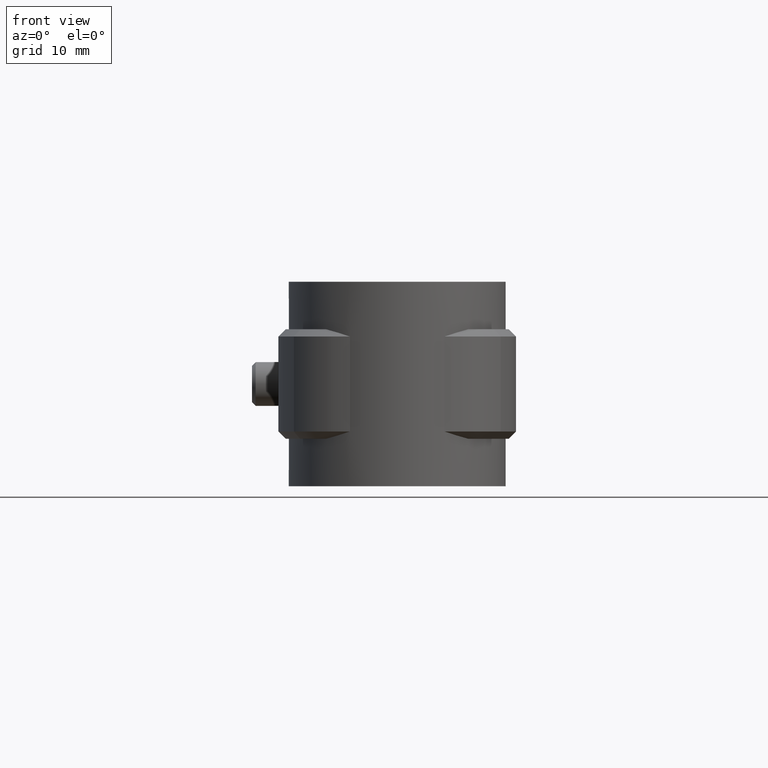
[diagram: clean part render]
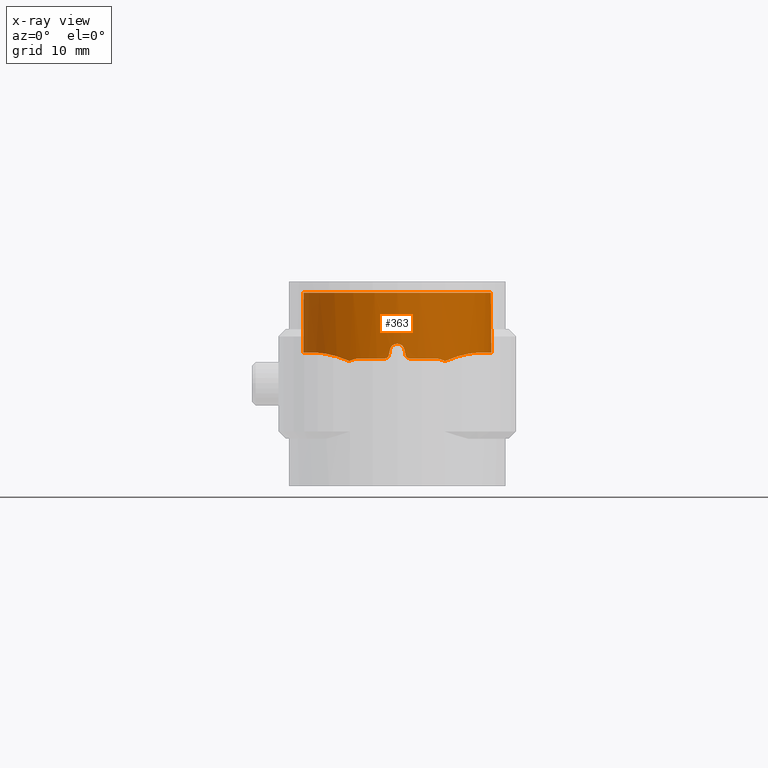
[diagram: x-ray — body ghosted, one internal face saturated and labeled with its STEP entity id]
A machine part, front view, then the same camera in x-ray: the body is ghosted and one INTERNAL B-rep face — a face not visible from any outside direction — is saturated and labeled: STEP entity #363.
In plain terms, the highlighted cylindrical surface (partial cylindrical patch) has radius 12.91 mm, axis along (0, 0, 1).
Its self-contained STEP definition (entity closure, byte-faithful):
#363 = ADVANCED_FACE( '', ( #690 ), #691, .T. );
#690 = FACE_OUTER_BOUND( '', #1390, .T. );
#691 = CYLINDRICAL_SURFACE( '', #1391, 12.9100000000000 );
#1390 = EDGE_LOOP( '', ( #2606, #2607, #2608, #2609, #2610, #2611, #2612, #2613, #2614, #2615, #2616, #2617, #2618, #2619, #2620, #2621 ) );
#1391 = AXIS2_PLACEMENT_3D( '', #2622, #2623, #2624 );
#2606 = ORIENTED_EDGE( '', *, *, #6294, .F. );
#2607 = ORIENTED_EDGE( '', *, *, #6295, .F. );
#2608 = ORIENTED_EDGE( '', *, *, #6296, .F. );
#2609 = ORIENTED_EDGE( '', *, *, #6297, .F. );
#2610 = ORIENTED_EDGE( '', *, *, #6298, .F. );
#2611 = ORIENTED_EDGE( '', *, *, #6299, .T. );
#2612 = ORIENTED_EDGE( '', *, *, #6300, .F. );
#2613 = ORIENTED_EDGE( '', *, *, #6301, .F. );
#2614 = ORIENTED_EDGE( '', *, *, #6302, .F. );
#2615 = ORIENTED_EDGE( '', *, *, #6303, .F. );
#2616 = ORIENTED_EDGE( '', *, *, #6304, .F. );
#2617 = ORIENTED_EDGE( '', *, *, #6305, .F. );
#2618 = ORIENTED_EDGE( '', *, *, #6306, .F. );
#2619 = ORIENTED_EDGE( '', *, *, #6307, .F. );
#2620 = ORIENTED_EDGE( '', *, *, #6308, .F. );
#2621 = ORIENTED_EDGE( '', *, *, #6309, .F. );
#2622 = CARTESIAN_POINT( '', ( 0.000000000000000, 0.000000000000000, 0.000000000000000 ) );
#2623 = DIRECTION( '', ( 0.000000000000000, 0.000000000000000, 1.00000000000000 ) );
#2624 = DIRECTION( '', ( 1.00000000000000, -6.12303176911189E-017, 0.000000000000000 ) );
#6294 = EDGE_CURVE( '', #7204, #7205, #7206, .T. );
#6295 = EDGE_CURVE( '', #7207, #7204, #7208, .T. );
#6296 = EDGE_CURVE( '', #7209, #7207, #7210, .T. );
#6297 = EDGE_CURVE( '', #7211, #7209, #7212, .T. );
#6298 = EDGE_CURVE( '', #7213, #7211, #7214, .F. );
#6299 = EDGE_CURVE( '', #7213, #7215, #7216, .T. );
#6300 = EDGE_CURVE( '', #7217, #7215, #7218, .T. );
#6301 = EDGE_CURVE( '', #7219, #7217, #7220, .T. );
#6302 = EDGE_CURVE( '', #7221, #7219, #7222, .T. );
#6303 = EDGE_CURVE( '', #7223, #7221, #7224, .T. );
#6304 = EDGE_CURVE( '', #7225, #7223, #7226, .T. );
#6305 = EDGE_CURVE( '', #7227, #7225, #7228, .T. );
#6306 = EDGE_CURVE( '', #7229, #7227, #7230, .T. );
#6307 = EDGE_CURVE( '', #7231, #7229, #7232, .T. );
#6308 = EDGE_CURVE( '', #7233, #7231, #7234, .T. );
#6309 = EDGE_CURVE( '', #7205, #7233, #7235, .T. );
#7204 = VERTEX_POINT( '', #8720 );
#7205 = VERTEX_POINT( '', #8721 );
#7206 = B_SPLINE_CURVE_WITH_KNOTS( '', 3, ( #8722, #8723, #8724, #8725, #8726, #8727 ), .UNSPECIFIED., .F., .F., ( 4, 2, 4 ), ( 0.0100745744029079, 0.0109624641031997, 0.0118503538034916 ), .UNSPECIFIED. );
#7207 = VERTEX_POINT( '', #8728 );
#7208 = B_SPLINE_CURVE_WITH_KNOTS( '', 3, ( #8729, #8730, #8731, #8732, #8733, #8734, #8735, #8736, #8737, #8738 ), .UNSPECIFIED., .F., .F., ( 4, 2, 2, 2, 4 ), ( 5.64749895672200E-005, 0.00336964445844548, 0.00419793682566505, 0.00502622919288461, 0.00668281392732375 ), .UNSPECIFIED. );
#7209 = VERTEX_POINT( '', #8739 );
#7210 = B_SPLINE_CURVE_WITH_KNOTS( '', 3, ( #8740, #8741, #8742, #8743, #8744, #8745, #8746, #8747, #8748, #8749, #8750, #8751, #8752, #8753, #8754, #8755, #8756, #8757, #8758, #8759, #8760, #8761, #8762, #8763 ), .UNSPECIFIED., .F., .F., ( 4, 2, 2, 2, 2, 2, 2, 2, 2, 2, 2, 4 ), ( 0.000000000000000, 0.00262616169573971, 0.00393924254360956, 0.00525232339147942, 0.00787848508721913, 0.00919156593508899, 0.0105046467829589, 0.0118177276308287, 0.0131308084786986, 0.0157569701744383, 0.0183831318701780, 0.0210092935659177 ), .UNSPECIFIED. );
#7211 = VERTEX_POINT( '', #8764 );
#7212 = LINE( '', #8765, #8766 );
#7213 = VERTEX_POINT( '', #8767 );
#7214 = CIRCLE( '', #8768, 12.9100000000000 );
#7215 = VERTEX_POINT( '', #8769 );
#7216 = LINE( '', #8770, #8771 );
#7217 = VERTEX_POINT( '', #8772 );
#7218 = B_SPLINE_CURVE_WITH_KNOTS( '', 3, ( #8773, #8774, #8775, #8776, #8777, #8778, #8779, #8780, #8781, #8782, #8783, #8784, #8785, #8786, #8787, #8788, #8789, #8790, #8791, #8792, #8793, #8794, #8795, #8796 ), .UNSPECIFIED., .F., .F., ( 4, 2, 2, 2, 2, 2, 2, 2, 2, 2, 2, 4 ), ( 0.000129656456609892, 0.00275580936476012, 0.00538196227291035, 0.00800811518106058, 0.00932119163513570, 0.0106342680892108, 0.0119473445432859, 0.0132604209973610, 0.0158865739055113, 0.0171996503595864, 0.0185127268136615, 0.0211388797218117 ), .UNSPECIFIED. );
#7219 = VERTEX_POINT( '', #8797 );
#7220 = B_SPLINE_CURVE_WITH_KNOTS( '', 3, ( #8798, #8799, #8800, #8801, #8802, #8803, #8804, #8805, #8806, #8807 ), .UNSPECIFIED., .F., .F., ( 4, 2, 2, 2, 4 ), ( 0.0160978879789235, 0.0177464275277820, 0.0193949670766405, 0.0210435066254990, 0.0226920461743575 ), .UNSPECIFIED. );
#7221 = VERTEX_POINT( '', #8808 );
#7222 = B_SPLINE_CURVE_WITH_KNOTS( '', 3, ( #8809, #8810, #8811, #8812, #8813, #8814 ), .UNSPECIFIED., .F., .F., ( 4, 2, 4 ), ( 3.87895961444886E-018, 0.000890649610167902, 0.00178129922033580 ), .UNSPECIFIED. );
#7223 = VERTEX_POINT( '', #8815 );
#7224 = CIRCLE( '', #8816, 12.9100000000000 );
#7225 = VERTEX_POINT( '', #8817 );
#7226 = B_SPLINE_CURVE_WITH_KNOTS( '', 3, ( #8818, #8819, #8820, #8821, #8822, #8823 ), .UNSPECIFIED., .F., .F., ( 4, 2, 4 ), ( 2.04566856771261E-018, 0.000337016490106994, 0.000674032980213987 ), .UNSPECIFIED. );
#7227 = VERTEX_POINT( '', #8824 );
#7228 = ELLIPSE( '', #8825, 58.8122822251916, 12.9100000000000 );
#7229 = VERTEX_POINT( '', #8826 );
#7230 = B_SPLINE_CURVE_WITH_KNOTS( '', 3, ( #8827, #8828, #8829, #8830, #8831, #8832, #8833, #8834, #8835, #8836 ), .UNSPECIFIED., .F., .F., ( 4, 2, 2, 2, 4 ), ( 9.26342742239755E-019, 0.000671833198564516, 0.00134366639712903, 0.00201549959569355, 0.00268733279425806 ), .UNSPECIFIED. );
#7231 = VERTEX_POINT( '', #8837 );
#7232 = ELLIPSE( '', #8838, 58.8122522236967, 12.9100000000000 );
#7233 = VERTEX_POINT( '', #8839 );
#7234 = B_SPLINE_CURVE_WITH_KNOTS( '', 3, ( #8840, #8841, #8842, #8843, #8844, #8845 ), .UNSPECIFIED., .F., .F., ( 4, 2, 4 ), ( 8.59738825340030E-018, 0.000336992785626757, 0.000673985571253506 ), .UNSPECIFIED. );
#7235 = CIRCLE( '', #8846, 12.9100000000000 );
#8720 = CARTESIAN_POINT( '', ( 6.55531539840426, -11.1218676501629, -9.36455840247556 ) );
#8721 = CARTESIAN_POINT( '', ( 5.00000000000000, -11.9024409261294, -9.00000000000000 ) );
#8722 = CARTESIAN_POINT( '', ( 6.55531539839940, -11.1218676501525, -9.36455840247315 ) );
#8723 = CARTESIAN_POINT( '', ( 6.32015172997991, -11.2604749475260, -9.24790699524380 ) );
#8724 = CARTESIAN_POINT( '', ( 6.07227759219039, -11.3965686208257, -9.15741431722998 ) );
#8725 = CARTESIAN_POINT( '', ( 5.54781086048457, -11.6608801615528, -9.03264343591434 ) );
#8726 = CARTESIAN_POINT( '', ( 5.27729536608152, -11.7859541618587, -8.99999999999998 ) );
#8727 = CARTESIAN_POINT( '', ( 5.00000000000000, -11.9024409261294, -8.99999999999997 ) );
#8728 = CARTESIAN_POINT( '', ( 11.1158138239829, -6.56557560542498, -8.20578959438989 ) );
#8729 = CARTESIAN_POINT( '', ( 11.1158138239829, -6.56557560542494, -8.20578959438988 ) );
#8730 = CARTESIAN_POINT( '', ( 10.5464443727055, -7.52954361033722, -8.22947050627589 ) );
#8731 = CARTESIAN_POINT( '', ( 9.86791215848431, -8.39632120479451, -8.32228283400495 ) );
#8732 = CARTESIAN_POINT( '', ( 8.89301540923206, -9.36257119812789, -8.55205024377319 ) );
#8733 = CARTESIAN_POINT( '', ( 8.69064900902044, -9.55066263861364, -8.60412425549421 ) );
#8734 = CARTESIAN_POINT( '', ( 8.27939493538370, -9.90929647041309, -8.71992973518773 ) );
#8735 = CARTESIAN_POINT( '', ( 8.07031816018667, -10.0801522768064, -8.78365793155719 ) );
#8736 = CARTESIAN_POINT( '', ( 7.43428651696818, -10.5681173585745, -8.99485449832332 ) );
#8737 = CARTESIAN_POINT( '', ( 6.99828295475331, -10.8607791230728, -9.16145208623091 ) );
#8738 = CARTESIAN_POINT( '', ( 6.55531539839195, -11.1218676501568, -9.36455840245641 ) );
#8739 = CARTESIAN_POINT( '', ( 5.86408106219426, 11.5013326747823, -8.20739690841978 ) );
#8740 = CARTESIAN_POINT( '', ( 5.86408106219414, 11.5013326747819, -8.20739690841976 ) );
#8741 = CARTESIAN_POINT( '', ( 6.65374116884316, 11.0987157774267, -8.20850447027294 ) );
#8742 = CARTESIAN_POINT( '', ( 7.38958332781680, 10.6221521878716, -8.20858405756369 ) );
#8743 = CARTESIAN_POINT( '', ( 8.41533312395806, 9.80011520993900, -8.20708110828982 ) );
#8744 = CARTESIAN_POINT( '', ( 8.74414498631812, 9.50809673492435, -8.20639190411669 ) );
#8745 = CARTESIAN_POINT( '', ( 9.37475983291398, 8.88694847164167, -8.20561692229041 ) );
#8746 = CARTESIAN_POINT( '', ( 9.67287342745124, 8.56128400351433, -8.20572960681877 ) );
#8747 = CARTESIAN_POINT( '', ( 10.5101398341898, 7.54804061959582, -8.20652661653835 ) );
#8748 = CARTESIAN_POINT( '', ( 10.9960156998445, 6.82143340626685, -8.20714016871088 ) );
#8749 = CARTESIAN_POINT( '', ( 11.6146013299799, 5.65359971102201, -8.20657302665307 ) );
#8750 = CARTESIAN_POINT( '', ( 11.8023493674690, 5.25030594704201, -8.20620526057068 ) );
#8751 = CARTESIAN_POINT( '', ( 12.1320109621542, 4.43570435709030, -8.20573297040744 ) );
#8752 = CARTESIAN_POINT( '', ( 12.2752050490306, 4.02222885437337, -8.20576909265969 ) );
#8753 = CARTESIAN_POINT( '', ( 12.5190504116225, 3.18313693452782, -8.20637065521503 ) );
#8754 = CARTESIAN_POINT( '', ( 12.6197013675470, 2.75752039986490, -8.20679643887767 ) );
#8755 = CARTESIAN_POINT( '', ( 12.7778575343168, 1.89397417998295, -8.20728006603312 ) );
#8756 = CARTESIAN_POINT( '', ( 12.8354998262448, 1.45348005402686, -8.20733455973577 ) );
#8757 = CARTESIAN_POINT( '', ( 12.9394089698893, 0.134297199856605, -8.20683423367183 ) );
#8758 = CARTESIAN_POINT( '', ( 12.9184987145224, -0.739797247285428, -8.20551512183127 ) );
#8759 = CARTESIAN_POINT( '', ( 12.7002716409491, -2.47750060551171, -8.20619344333585 ) );
#8760 = CARTESIAN_POINT( '', ( 12.4990630494520, -3.34816613684994, -8.20718605735141 ) );
#8761 = CARTESIAN_POINT( '', ( 11.9316203915142, -5.00731748812940, -8.20660974321114 ) );
#8762 = CARTESIAN_POINT( '', ( 11.5658892249966, -5.80357775001811, -8.20541266015148 ) );
#8763 = CARTESIAN_POINT( '', ( 11.1158139196182, -6.56557544351003, -8.20578963022182 ) );
#8764 = CARTESIAN_POINT( '', ( 5.86408106219427, 11.5013326747823, 0.000000000000000 ) );
#8765 = CARTESIAN_POINT( '', ( 5.86408106219426, 11.5013326747823, 0.000000000000000 ) );
#8766 = VECTOR( '', #12289, 1000.00000000000 );
#8767 = CARTESIAN_POINT( '', ( -5.86408106219428, 11.5013326747823, 0.000000000000000 ) );
#8768 = AXIS2_PLACEMENT_3D( '', #12290, #12291, #12292 );
#8769 = CARTESIAN_POINT( '', ( -5.86408106219428, 11.5013326747823, -8.20739690841976 ) );
#8770 = CARTESIAN_POINT( '', ( -5.86408106219428, 11.5013326747823, 0.000000000000000 ) );
#8771 = VECTOR( '', #12293, 1000.00000000000 );
#8772 = CARTESIAN_POINT( '', ( -11.1158138117273, -6.56557536555151, -8.20578944713720 ) );
#8773 = CARTESIAN_POINT( '', ( -11.1158139198082, -6.56557544318837, -8.20578963022167 ) );
#8774 = CARTESIAN_POINT( '', ( -11.5658895666344, -5.80357717155955, -8.20541265983337 ) );
#8775 = CARTESIAN_POINT( '', ( -11.9316290002090, -5.00730256760635, -8.20660977903030 ) );
#8776 = CARTESIAN_POINT( '', ( -12.4990860526415, -3.34808862649228, -8.20718605363684 ) );
#8777 = CARTESIAN_POINT( '', ( -12.7002847397959, -2.47743396846048, -8.20619335995856 ) );
#8778 = CARTESIAN_POINT( '', ( -12.9185028600661, -0.739726567347050, -8.20551515161069 ) );
#8779 = CARTESIAN_POINT( '', ( -12.9394152110773, 0.134421759773277, -8.20683441878293 ) );
#8780 = CARTESIAN_POINT( '', ( -12.8354691177185, 1.45376797723548, -8.20733459997422 ) );
#8781 = CARTESIAN_POINT( '', ( -12.7778245707622, 1.89418809180431, -8.20727999148852 ) );
#8782 = CARTESIAN_POINT( '', ( -12.6196695409946, 2.75766023367656, -8.20679631528925 ) );
#8783 = CARTESIAN_POINT( '', ( -12.5190193632556, 3.18325923349691, -8.20637053989893 ) );
#8784 = CARTESIAN_POINT( '', ( -12.2751649397534, 4.02235141019047, -8.20576903244233 ) );
#8785 = CARTESIAN_POINT( '', ( -12.1319610712916, 4.43584472086579, -8.20573300720573 ) );
#8786 = CARTESIAN_POINT( '', ( -11.8022579748046, 5.25051469087845, -8.20620542619729 ) );
#8787 = CARTESIAN_POINT( '', ( -11.6144849626805, 5.65383498072771, -8.20657318849852 ) );
#8788 = CARTESIAN_POINT( '', ( -10.9959482314771, 6.82152961154646, -8.20714012021692 ) );
#8789 = CARTESIAN_POINT( '', ( -10.5100859424053, 7.54812196949581, -8.20652650478775 ) );
#8790 = CARTESIAN_POINT( '', ( -9.67275572270320, 8.56141837984192, -8.20572952500622 ) );
#8791 = CARTESIAN_POINT( '', ( -9.37454082121898, 8.88717660388074, -8.20561706952225 ) );
#8792 = CARTESIAN_POINT( '', ( -8.74399641512102, 9.50823066030778, -8.20639220868978 ) );
#8793 = CARTESIAN_POINT( '', ( -8.41521652184689, 9.80021364609152, -8.20708131043808 ) );
#8794 = CARTESIAN_POINT( '', ( -7.38954783507030, 10.6221706476417, -8.20858404695509 ) );
#8795 = CARTESIAN_POINT( '', ( -6.65374034264626, 11.0987161986727, -8.20850446911512 ) );
#8796 = CARTESIAN_POINT( '', ( -5.86408106219440, 11.5013326747822, -8.20739690842075 ) );
#8797 = CARTESIAN_POINT( '', ( -6.55531539837834, -11.1218676501649, -9.36455840246265 ) );
#8798 = CARTESIAN_POINT( '', ( -6.55531539837831, -11.1218676501649, -9.36455840246267 ) );
#8799 = CARTESIAN_POINT( '', ( -6.99852238394517, -10.8606380016434, -9.16134230486934 ) );
#8800 = CARTESIAN_POINT( '', ( -7.44309559181319, -10.5619465283304, -8.99160964930167 ) );
#8801 = CARTESIAN_POINT( '', ( -8.29155193523834, -9.90982103579195, -8.71052310510688 ) );
#8802 = CARTESIAN_POINT( '', ( -8.69778571529010, -9.55572697920060, -8.59818379681480 ) );
#8803 = CARTESIAN_POINT( '', ( -9.47003956949126, -8.79100364022200, -8.41593517796647 ) );
#8804 = CARTESIAN_POINT( '', ( -9.83809333796787, -8.37777732360427, -8.34635335692084 ) );
#8805 = CARTESIAN_POINT( '', ( -10.5198548985254, -7.50385809596876, -8.24729764131964 ) );
#8806 = CARTESIAN_POINT( '', ( -10.8323270987695, -7.04553134027729, -8.21758022428341 ) );
#8807 = CARTESIAN_POINT( '', ( -11.1158138288986, -6.56557559710239, -8.20578959418543 ) );
#8808 = CARTESIAN_POINT( '', ( -5.00000000000005, -11.9024409261294, -9.00000000000000 ) );
#8809 = CARTESIAN_POINT( '', ( -5.00000000000005, -11.9024409261294, -8.99999999999997 ) );
#8810 = CARTESIAN_POINT( '', ( -5.27791933988741, -11.7856920417567, -8.99999999999997 ) );
#8811 = CARTESIAN_POINT( '', ( -5.54620353624585, -11.6615722990112, -9.03259733755304 ) );
#8812 = CARTESIAN_POINT( '', ( -6.06560149942964, -11.4000491490453, -9.15549510824620 ) );
#8813 = CARTESIAN_POINT( '', ( -6.31911453996093, -11.2610862753992, -9.24739250388705 ) );
#8814 = CARTESIAN_POINT( '', ( -6.55531539837834, -11.1218676501649, -9.36455840246265 ) );
#8815 = CARTESIAN_POINT( '', ( -1.65000000000003, -12.8041243355413, -9.00000000000000 ) );
#8816 = AXIS2_PLACEMENT_3D( '', #12294, #12295, #12296 );
#8817 = CARTESIAN_POINT( '', ( -1.16219512100914, -12.8575815183378, -8.60975609337373 ) );
#8818 = CARTESIAN_POINT( '', ( -1.16219512100915, -12.8575815183378, -8.60975609337372 ) );
#8819 = CARTESIAN_POINT( '', ( -1.18720577628469, -12.8553208084607, -8.72091456572039 ) );
#8820 = CARTESIAN_POINT( '', ( -1.24952712846974, -12.8496981485357, -8.82016248163292 ) );
#8821 = CARTESIAN_POINT( '', ( -1.42700965376445, -12.8312004115487, -8.96169020020224 ) );
#8822 = CARTESIAN_POINT( '', ( -1.53699580313443, -12.8186865906352, -8.99999999999994 ) );
#8823 = CARTESIAN_POINT( '', ( -1.65000000000003, -12.8041243355413, -8.99999999999994 ) );
#8824 = CARTESIAN_POINT( '', ( -0.975610000000025, -12.8730837458590, -7.78048800000004 ) );
#8825 = AXIS2_PLACEMENT_3D( '', #12297, #12298, #12299 );
#8826 = CARTESIAN_POINT( '', ( 0.975609757981814, -12.8730837642008, -7.78048781325256 ) );
#8827 = CARTESIAN_POINT( '', ( 0.975609757981816, -12.8730837642008, -7.78048781325256 ) );
#8828 = CARTESIAN_POINT( '', ( 0.925748592681881, -12.8768625821051, -7.55888272429547 ) );
#8829 = CARTESIAN_POINT( '', ( 0.801986059792278, -12.8862875597982, -7.36098203978120 ) );
#8830 = CARTESIAN_POINT( '', ( 0.447500666767335, -12.9034620109160, -7.07735773491965 ) );
#8831 = CARTESIAN_POINT( '', ( 0.227172866612440, -12.9100000447177, -6.99999944197818 ) );
#8832 = CARTESIAN_POINT( '', ( -0.227177949106791, -12.9099999552818, -7.00000055116068 ) );
#8833 = CARTESIAN_POINT( '', ( -0.447613664813755, -12.9034572666642, -7.07742832058838 ) );
#8834 = CARTESIAN_POINT( '', ( -0.801979139741392, -12.8862871644620, -7.36099601310312 ) );
#8835 = CARTESIAN_POINT( '', ( -0.925748842232397, -12.8768625641352, -7.55888274644759 ) );
#8836 = CARTESIAN_POINT( '', ( -0.975610000000026, -12.8730837458590, -7.78048800000004 ) );
#8837 = CARTESIAN_POINT( '', ( 1.16219499999999, -12.8575815292758, -8.60975599999998 ) );
#8838 = AXIS2_PLACEMENT_3D( '', #12300, #12301, #12302 );
#8839 = CARTESIAN_POINT( '', ( 1.64999999999995, -12.8041243355413, -9.00000000000000 ) );
#8840 = CARTESIAN_POINT( '', ( 1.64999999999995, -12.8041243355413, -8.99999999999994 ) );
#8841 = CARTESIAN_POINT( '', ( 1.53699571464535, -12.8186866020383, -9.00000000048495 ) );
#8842 = CARTESIAN_POINT( '', ( 1.42700640850480, -12.8312006729534, -8.96168353558250 ) );
#8843 = CARTESIAN_POINT( '', ( 1.24955236960382, -12.8496955946485, -8.82018675731936 ) );
#8844 = CARTESIAN_POINT( '', ( 1.18720569103340, -12.8553208164039, -8.72091462904289 ) );
#8845 = CARTESIAN_POINT( '', ( 1.16219499999999, -12.8575815292758, -8.60975599999998 ) );
#8846 = AXIS2_PLACEMENT_3D( '', #12303, #12304, #12305 );
#12289 = DIRECTION( '', ( 0.000000000000000, 0.000000000000000, -1.00000000000000 ) );
#12290 = CARTESIAN_POINT( '', ( 0.000000000000000, 0.000000000000000, 0.000000000000000 ) );
#12291 = DIRECTION( '', ( 0.000000000000000, 0.000000000000000, -1.00000000000000 ) );
#12292 = DIRECTION( '', ( -1.00000000000000, 0.000000000000000, 0.000000000000000 ) );
#12293 = DIRECTION( '', ( 0.000000000000000, 0.000000000000000, -1.00000000000000 ) );
#12294 = CARTESIAN_POINT( '', ( 0.000000000000000, 0.000000000000000, -9.00000000000000 ) );
#12295 = DIRECTION( '', ( 6.12303176911189E-017, -1.56572574765720E-016, -1.00000000000000 ) );
#12296 = DIRECTION( '', ( 0.000000000000000, 1.00000000000000, -1.56572574765720E-016 ) );
#12297 = CARTESIAN_POINT( '', ( 0.000000000000000, 0.000000000000000, -3.44443890776446 ) );
#12298 = DIRECTION( '', ( 0.975609806487711, 1.65590917266197E-017, -0.219511971165610 ) );
#12299 = DIRECTION( '', ( -0.219511971165610, -3.72579164482623E-018, -0.975609806487711 ) );
#12300 = CARTESIAN_POINT( '', ( 0.000000000000000, 0.000000000000000, -3.44444212055029 ) );
#12301 = DIRECTION( '', ( -0.975609781292647, -8.52982169786940E-017, -0.219512083143762 ) );
#12302 = DIRECTION( '', ( 0.219512083143762, 1.91920885342428E-017, -0.975609781292647 ) );
#12303 = CARTESIAN_POINT( '', ( 0.000000000000000, 0.000000000000000, -9.00000000000000 ) );
#12304 = DIRECTION( '', ( 6.12303176911189E-017, -1.56572574765720E-016, -1.00000000000000 ) );
#12305 = DIRECTION( '', ( 0.000000000000000, 1.00000000000000, -1.56572574765720E-016 ) );